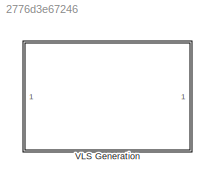
MODEL slx_2776d3e67246
KIND library
CONFIG AbsTol = auto
CONFIG EnableMultiTasking = off
CONFIG FixedStep = auto
CONFIG MaxStep = auto
CONFIG MinStep = auto
CONFIG RelTol = 1e-3
CONFIG SampleTimeConstraint = Unconstrained
CONFIG SolverName = VariableStepAuto
CONFIG StartTime = 0.0
CONFIG StopTime = 10.0
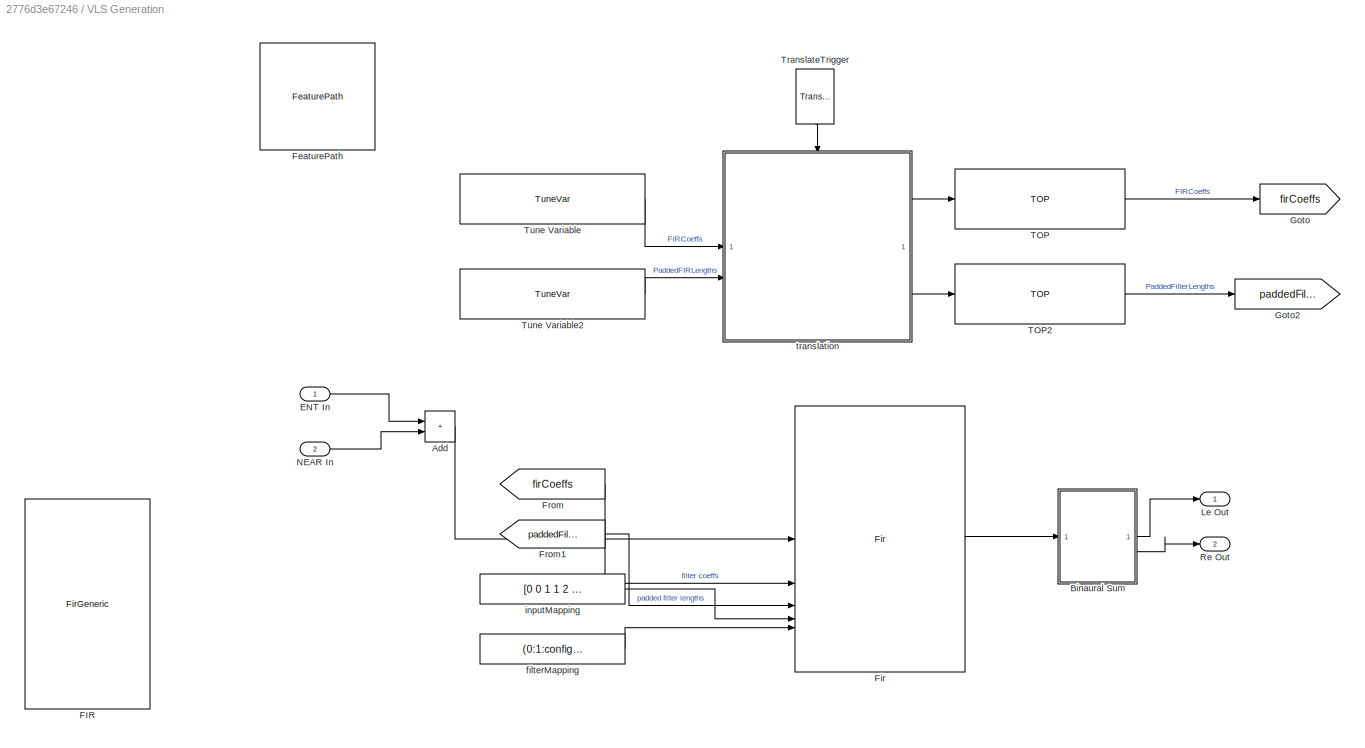
BLOCK [SubSystem] VLS Generation
BLOCK [Sum] VLS Generation/Add
  IconShape = rectangular
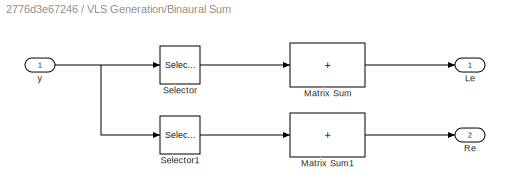
BLOCK [SubSystem] VLS Generation/Binaural Sum
BLOCK [Outport] VLS Generation/Binaural Sum/Le
  VectorParamsAs1DForOutWhenUnconnected = off
BLOCK [Sum] VLS Generation/Binaural Sum/Matrix Sum
  CollapseDim = 2
  CollapseMode = Specified dimension
  IconShape = rectangular
  Inputs = +
BLOCK [Sum] VLS Generation/Binaural Sum/Matrix Sum1
  CollapseDim = 2
  CollapseMode = Specified dimension
  IconShape = rectangular
  Inputs = +
BLOCK [Outport] VLS Generation/Binaural Sum/Re
  Port = 2
  VectorParamsAs1DForOutWhenUnconnected = off
BLOCK [Selector] VLS Generation/Binaural Sum/Selector
  IndexOptions = Select all,Index vector (dialog)
  Indices = [1 3],configStruct.LeIdx
  InputPortWidth = 3
  NumberOfDimensions = 2
  OutputSizes = 1,1
BLOCK [Selector] VLS Generation/Binaural Sum/Selector1
  IndexOptions = Select all,Index vector (dialog)
  Indices = [1 3],configStruct.ReIdx
  InputPortWidth = 3
  NumberOfDimensions = 2
  OutputSizes = 1,1
BLOCK [Inport] VLS Generation/Binaural Sum/y
BLOCK [Inport] VLS Generation/ENT In
BLOCK [Reference] VLS Generation/FIR  REF=FirGenericDeprecated/FirGeneric
  Commented = on
  SourceBlock = FirGenericDeprecated/FirGeneric
  SourceType = FirGeneric
BLOCK [Reference] VLS Generation/FeaturePath  REF=FeaturePath/FeaturePath
  SourceBlock = FeaturePath/FeaturePath
  SourceProductName = Bose Talaria
  SourceType = Talaria Feature Path
BLOCK [Reference] VLS Generation/Fir  REF=FirGeneric/Fir
  SourceBlock = FirGeneric/Fir
  SourceProductName = Bose Blocklib
  SourceType = Blocklib Fir
BLOCK [From] VLS Generation/From
  GotoTag = firCoeffs
BLOCK [From] VLS Generation/From1
  GotoTag = paddedFilterLengths
BLOCK [Goto] VLS Generation/Goto
  GotoTag = firCoeffs
BLOCK [Goto] VLS Generation/Goto2
  GotoTag = paddedFilterLengths
BLOCK [Outport] VLS Generation/Le Out
  VectorParamsAs1DForOutWhenUnconnected = off
BLOCK [Inport] VLS Generation/NEAR In
  Port = 2
BLOCK [Outport] VLS Generation/Re Out
  Port = 2
  VectorParamsAs1DForOutWhenUnconnected = off
BLOCK [Reference] VLS Generation/TOP  REF=TOP/TOP
  SourceBlock = TOP/TOP
  SourceProductName = Bose Talaria
  SourceType = Talaria Target Overlay Parameter
BLOCK [Reference] VLS Generation/TOP2  REF=TOP/TOP
  SourceBlock = TOP/TOP
  SourceProductName = Bose Talaria
  SourceType = Talaria Target Overlay Parameter
BLOCK [Reference] VLS Generation/TranslateTrigger  REF=TuneVar/TranslateTrigger
  NameLocation = left
  SourceBlock = TuneVar/TranslateTrigger
  SourceProductName = Bose Talaria
  SourceType = Talaria Translate Trigger
BLOCK [Reference] VLS Generation/Tune Variable  REF=TuneVar/TuneVar
  SourceBlock = TuneVar/TuneVar
  SourceProductName = Bose Talaria
  SourceType = Talaria Tune Variable
BLOCK [Reference] VLS Generation/Tune Variable2  REF=TuneVar/TuneVar
  SourceBlock = TuneVar/TuneVar
  SourceProductName = Bose Talaria
  SourceType = Talaria Tune Variable
BLOCK [Constant] VLS Generation/filterMapping
  OutDataTypeStr = uint32
  Value = (0:1:configStruct.numFilters-1)'
  VectorParams1D = off
BLOCK [Constant] VLS Generation/inputMapping
  OutDataTypeStr = uint32
  Value = [0 0 1 1 2 2 3 3 4 4 5 5 6 6 7 7 8 9 10 11]'
  VectorParams1D = off
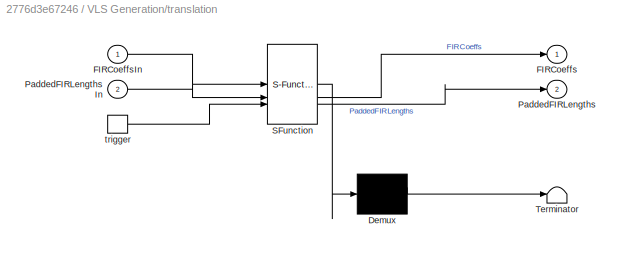
BLOCK [SubSystem] VLS Generation/translation
  ErrorFcn = Stateflow.Translate.translate
  PermitHierarchicalResolution = ExplicitOnly
  SFBlockType = MATLAB Function
  TreatAsAtomicUnit = on
BLOCK [Demux] VLS Generation/translation/ Demux 
  Outputs = 1
BLOCK [S-Function] VLS Generation/translation/ SFunction 
  EnableBusSupport = off
  FunctionName = sf_sfun
  PortCounts = [3 3]
  SFcnIsStateOwnerBlock = off
  SFunctionDeploymentMode = off
  Tag = Stateflow S-Function 8
BLOCK [Terminator] VLS Generation/translation/ Terminator 
BLOCK [Outport] VLS Generation/translation/FIRCoeffs
  VectorParamsAs1DForOutWhenUnconnected = off
BLOCK [Inport] VLS Generation/translation/FIRCoeffsIn
BLOCK [Outport] VLS Generation/translation/PaddedFIRLengths
  Port = 2
  VectorParamsAs1DForOutWhenUnconnected = off
BLOCK [Inport] VLS Generation/translation/PaddedFIRLengthsIn
  Port = 2
BLOCK [TriggerPort] VLS Generation/translation/trigger
  ShowOutputPort = on
  StatesWhenEnabling = held
  TriggerType = function-call
  VariantControl = Variant
CHART VLS Generation/translation states=1 transitions=1
  STATE_LABEL 'eML_blk_kernel()'
  STATE_LABEL 'SCRIPT:\nfunction [FIRCoeffs, PaddedFIRLengths] = fcn(FIRCoeffsIn, PaddedFIRLengthsIn)\n\nFIRCoeffs = FIRCoeffsIn.Value;\nPaddedFIRLengths = PaddedFIRLengthsIn.Value;'
CHART  states=0 transitions=0
